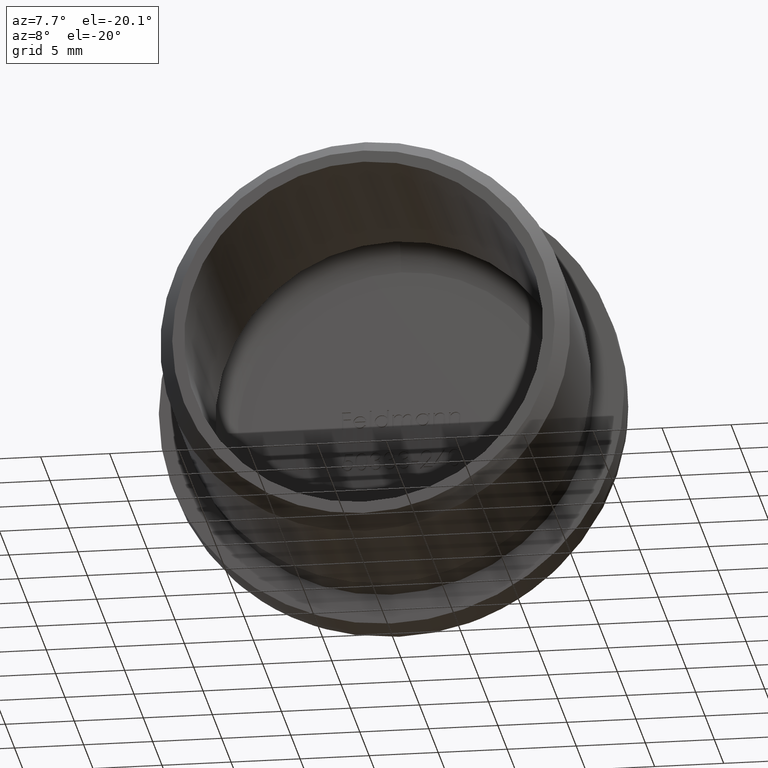
[diagram: clean part render]
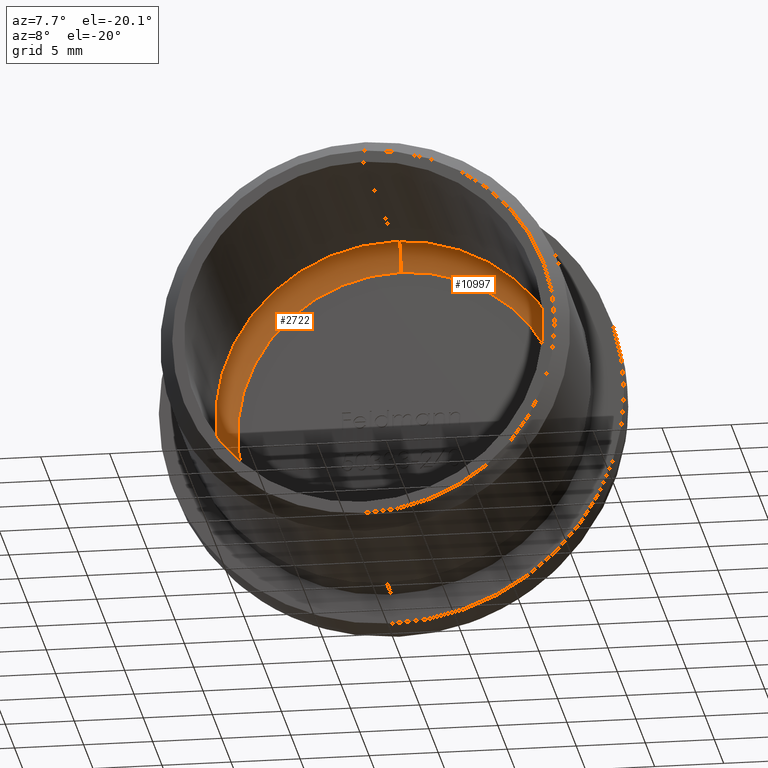
[diagram: same view with one multi-face feature highlighted, each face labeled with its STEP entity id]
A machine part, auxiliary view. The highlighted faces form ONE feature: a constant-radius fillet chain: 2 tangent blend faces with common blend radius 3.15 mm. The faces share edges in the B-rep.
Their STEP definitions:
[1] entity #2722 (Torus):
#484 = DIRECTION ( 'NONE',  ( 0.0000000000000000000, 0.0000000000000000000, 1.000000000000000000 ) ) ;
#486 = VERTEX_POINT ( 'NONE', #6650 ) ;
#770 = CARTESIAN_POINT ( 'NONE',  ( 0.0000000000000000000, 20.14999999999999900, -11.85000000000000300 ) ) ;
#792 = DIRECTION ( 'NONE',  ( -0.0000000000000000000, -1.000000000000000000, -0.0000000000000000000 ) ) ;
#1089 = CARTESIAN_POINT ( 'NONE',  ( 1.836970198721030400E-015, 16.99999999999999600, 15.00000000000000400 ) ) ;
#1093 = EDGE_CURVE ( 'NONE', #10745, #3756, #13548, .T. ) ;
#2591 = AXIS2_PLACEMENT_3D ( 'NONE', #6377, #792, #8723 ) ;
#2604 = CARTESIAN_POINT ( 'NONE',  ( 1.644088327855322000E-015, 20.14999999999999900, 11.85000000000000300 ) ) ;
#2702 = DIRECTION ( 'NONE',  ( 0.0000000000000000000, 0.0000000000000000000, -1.000000000000000000 ) ) ;
#2712 = AXIS2_PLACEMENT_3D ( 'NONE', #6102, #3766, #2702 ) ;
#2722 = ADVANCED_FACE ( 'NONE', ( #9502 ), #12796, .F. ) ;
#2733 = CIRCLE ( 'NONE', #2591, 15.00000000000000400 ) ;
#3189 = ORIENTED_EDGE ( 'NONE', *, *, #7729, .F. ) ;
#3677 = EDGE_LOOP ( 'NONE', ( #13992, #14428, #7254, #3189 ) ) ;
#3756 = VERTEX_POINT ( 'NONE', #1089 ) ;
#3766 = DIRECTION ( 'NONE',  ( -0.0000000000000000000, -1.000000000000000000, -0.0000000000000000000 ) ) ;
#4034 = AXIS2_PLACEMENT_3D ( 'NONE', #6004, #6141, #484 ) ;
#5420 = CIRCLE ( 'NONE', #4034, 3.149999999999999900 ) ;
#6004 = CARTESIAN_POINT ( 'NONE',  ( 0.0000000000000000000, 16.99999999999999600, -11.85000000000000300 ) ) ;
#6102 = CARTESIAN_POINT ( 'NONE',  ( 0.0000000000000000000, 20.14999999999999900, 0.0000000000000000000 ) ) ;
#6141 = DIRECTION ( 'NONE',  ( -1.000000000000000000, 0.0000000000000000000, 0.0000000000000000000 ) ) ;
#6377 = CARTESIAN_POINT ( 'NONE',  ( 0.0000000000000000000, 16.99999999999999600, 0.0000000000000000000 ) ) ;
#6650 = CARTESIAN_POINT ( 'NONE',  ( 0.0000000000000000000, 16.99999999999999600, -15.00000000000000400 ) ) ;
#7254 = ORIENTED_EDGE ( 'NONE', *, *, #9331, .T. ) ;
#7729 = EDGE_CURVE ( 'NONE', #10099, #486, #5420, .T. ) ;
#8416 = DIRECTION ( 'NONE',  ( 1.000000000000000000, 0.0000000000000000000, -1.224646799147353200E-016 ) ) ;
#8609 = AXIS2_PLACEMENT_3D ( 'NONE', #11534, #12674, #13823 ) ;
#8723 = DIRECTION ( 'NONE',  ( 0.0000000000000000000, 0.0000000000000000000, -1.000000000000000000 ) ) ;
#8806 = DIRECTION ( 'NONE',  ( -1.224646799147353200E-016, 0.0000000000000000000, -1.000000000000000000 ) ) ;
#9331 = EDGE_CURVE ( 'NONE', #3756, #486, #2733, .T. ) ;
#9502 = FACE_OUTER_BOUND ( 'NONE', #3677, .T. ) ;
#9964 = EDGE_CURVE ( 'NONE', #10745, #10099, #10737, .T. ) ;
#10099 = VERTEX_POINT ( 'NONE', #770 ) ;
#10612 = CARTESIAN_POINT ( 'NONE',  ( 1.451206456989613900E-015, 16.99999999999999600, 11.85000000000000300 ) ) ;
#10737 = CIRCLE ( 'NONE', #2712, 11.85000000000000300 ) ;
#10745 = VERTEX_POINT ( 'NONE', #2604 ) ;
#11534 = CARTESIAN_POINT ( 'NONE',  ( 0.0000000000000000000, 16.99999999999999600, 0.0000000000000000000 ) ) ;
#12674 = DIRECTION ( 'NONE',  ( -0.0000000000000000000, -1.000000000000000000, -0.0000000000000000000 ) ) ;
#12796 = TOROIDAL_SURFACE ( 'NONE', #8609, 11.85000000000000300, 3.149999999999999900 ) ;
#13548 = CIRCLE ( 'NONE', #13687, 3.149999999999999900 ) ;
#13687 = AXIS2_PLACEMENT_3D ( 'NONE', #10612, #8416, #8806 ) ;
#13823 = DIRECTION ( 'NONE',  ( 0.0000000000000000000, 0.0000000000000000000, -1.000000000000000000 ) ) ;
#13992 = ORIENTED_EDGE ( 'NONE', *, *, #9964, .F. ) ;
#14428 = ORIENTED_EDGE ( 'NONE', *, *, #1093, .T. ) ;
[2] entity #10997 (Torus):
#484 = DIRECTION ( 'NONE',  ( 0.0000000000000000000, 0.0000000000000000000, 1.000000000000000000 ) ) ;
#486 = VERTEX_POINT ( 'NONE', #6650 ) ;
#716 = ORIENTED_EDGE ( 'NONE', *, *, #9237, .F. ) ;
#770 = CARTESIAN_POINT ( 'NONE',  ( 0.0000000000000000000, 20.14999999999999900, -11.85000000000000300 ) ) ;
#1089 = CARTESIAN_POINT ( 'NONE',  ( 1.836970198721030400E-015, 16.99999999999999600, 15.00000000000000400 ) ) ;
#1093 = EDGE_CURVE ( 'NONE', #10745, #3756, #13548, .T. ) ;
#1434 = CIRCLE ( 'NONE', #6556, 15.00000000000000400 ) ;
#2604 = CARTESIAN_POINT ( 'NONE',  ( 1.644088327855322000E-015, 20.14999999999999900, 11.85000000000000300 ) ) ;
#3271 = AXIS2_PLACEMENT_3D ( 'NONE', #7508, #5395, #8611 ) ;
#3434 = ORIENTED_EDGE ( 'NONE', *, *, #1093, .F. ) ;
#3462 = CIRCLE ( 'NONE', #3271, 11.85000000000000300 ) ;
#3601 = CARTESIAN_POINT ( 'NONE',  ( 0.0000000000000000000, 16.99999999999999600, 0.0000000000000000000 ) ) ;
#3756 = VERTEX_POINT ( 'NONE', #1089 ) ;
#4034 = AXIS2_PLACEMENT_3D ( 'NONE', #6004, #6141, #484 ) ;
#4593 = DIRECTION ( 'NONE',  ( 0.0000000000000000000, 0.0000000000000000000, -1.000000000000000000 ) ) ;
#4650 = CARTESIAN_POINT ( 'NONE',  ( 0.0000000000000000000, 16.99999999999999600, 0.0000000000000000000 ) ) ;
#5395 = DIRECTION ( 'NONE',  ( -0.0000000000000000000, -1.000000000000000000, -0.0000000000000000000 ) ) ;
#5420 = CIRCLE ( 'NONE', #4034, 3.149999999999999900 ) ;
#5477 = ORIENTED_EDGE ( 'NONE', *, *, #13228, .T. ) ;
#5898 = EDGE_LOOP ( 'NONE', ( #3434, #716, #7612, #5477 ) ) ;
#6004 = CARTESIAN_POINT ( 'NONE',  ( 0.0000000000000000000, 16.99999999999999600, -11.85000000000000300 ) ) ;
#6141 = DIRECTION ( 'NONE',  ( -1.000000000000000000, 0.0000000000000000000, 0.0000000000000000000 ) ) ;
#6556 = AXIS2_PLACEMENT_3D ( 'NONE', #4650, #11315, #4593 ) ;
#6650 = CARTESIAN_POINT ( 'NONE',  ( 0.0000000000000000000, 16.99999999999999600, -15.00000000000000400 ) ) ;
#7246 = AXIS2_PLACEMENT_3D ( 'NONE', #3601, #8059, #9333 ) ;
#7508 = CARTESIAN_POINT ( 'NONE',  ( 0.0000000000000000000, 20.14999999999999900, 0.0000000000000000000 ) ) ;
#7612 = ORIENTED_EDGE ( 'NONE', *, *, #7729, .T. ) ;
#7729 = EDGE_CURVE ( 'NONE', #10099, #486, #5420, .T. ) ;
#7746 = FACE_OUTER_BOUND ( 'NONE', #5898, .T. ) ;
#8059 = DIRECTION ( 'NONE',  ( -0.0000000000000000000, -1.000000000000000000, -0.0000000000000000000 ) ) ;
#8416 = DIRECTION ( 'NONE',  ( 1.000000000000000000, 0.0000000000000000000, -1.224646799147353200E-016 ) ) ;
#8611 = DIRECTION ( 'NONE',  ( 0.0000000000000000000, 0.0000000000000000000, -1.000000000000000000 ) ) ;
#8806 = DIRECTION ( 'NONE',  ( -1.224646799147353200E-016, 0.0000000000000000000, -1.000000000000000000 ) ) ;
#9237 = EDGE_CURVE ( 'NONE', #10099, #10745, #3462, .T. ) ;
#9333 = DIRECTION ( 'NONE',  ( 0.0000000000000000000, 0.0000000000000000000, -1.000000000000000000 ) ) ;
#10099 = VERTEX_POINT ( 'NONE', #770 ) ;
#10612 = CARTESIAN_POINT ( 'NONE',  ( 1.451206456989613900E-015, 16.99999999999999600, 11.85000000000000300 ) ) ;
#10745 = VERTEX_POINT ( 'NONE', #2604 ) ;
#10997 = ADVANCED_FACE ( 'NONE', ( #7746 ), #14235, .F. ) ;
#11315 = DIRECTION ( 'NONE',  ( -0.0000000000000000000, -1.000000000000000000, -0.0000000000000000000 ) ) ;
#13228 = EDGE_CURVE ( 'NONE', #486, #3756, #1434, .T. ) ;
#13548 = CIRCLE ( 'NONE', #13687, 3.149999999999999900 ) ;
#13687 = AXIS2_PLACEMENT_3D ( 'NONE', #10612, #8416, #8806 ) ;
#14235 = TOROIDAL_SURFACE ( 'NONE', #7246, 11.85000000000000300, 3.149999999999999900 ) ;